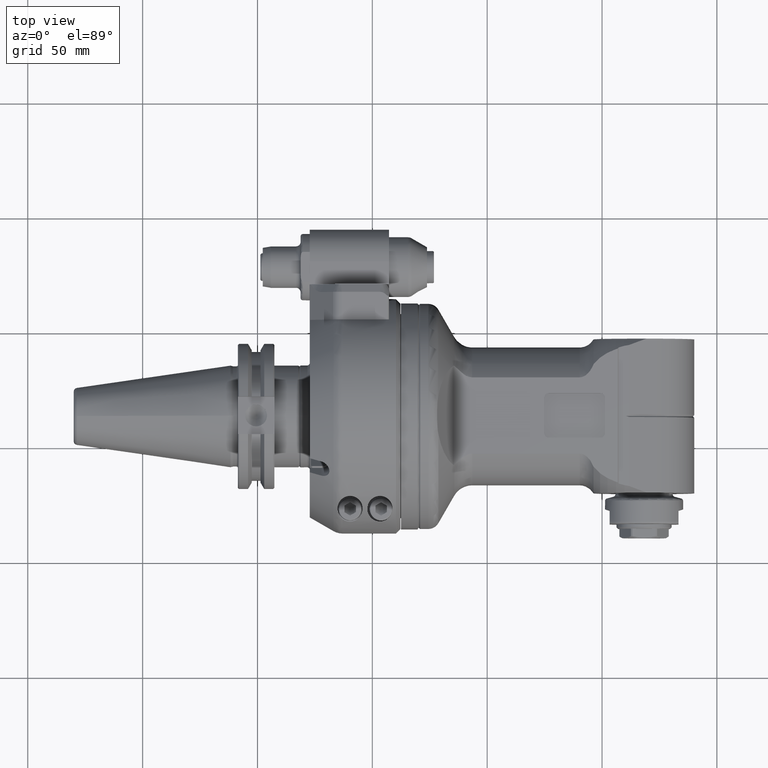
[diagram: clean part render]
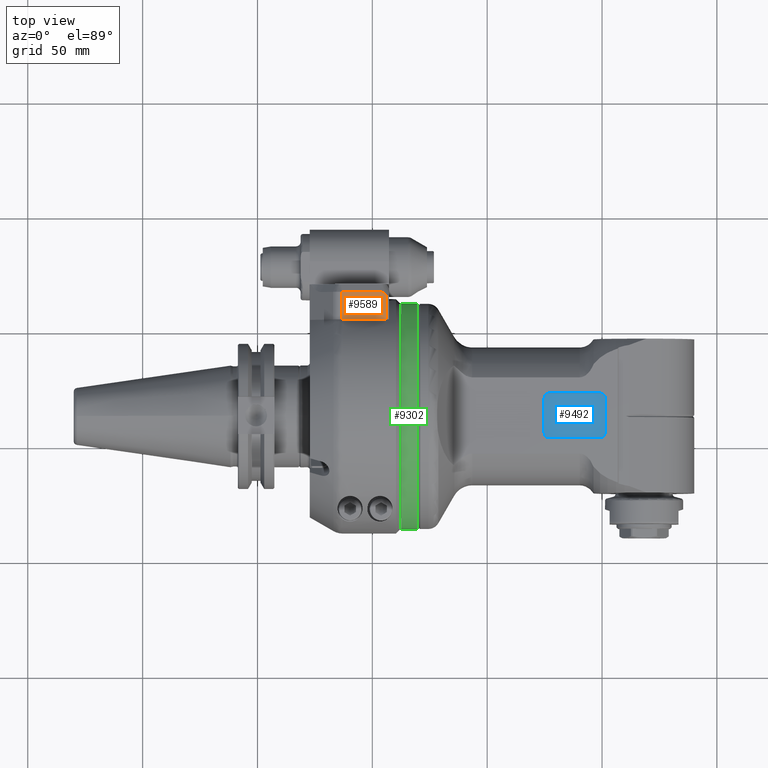
[diagram: same view with three faces highlighted in distinct colors, each labeled with its STEP entity id]
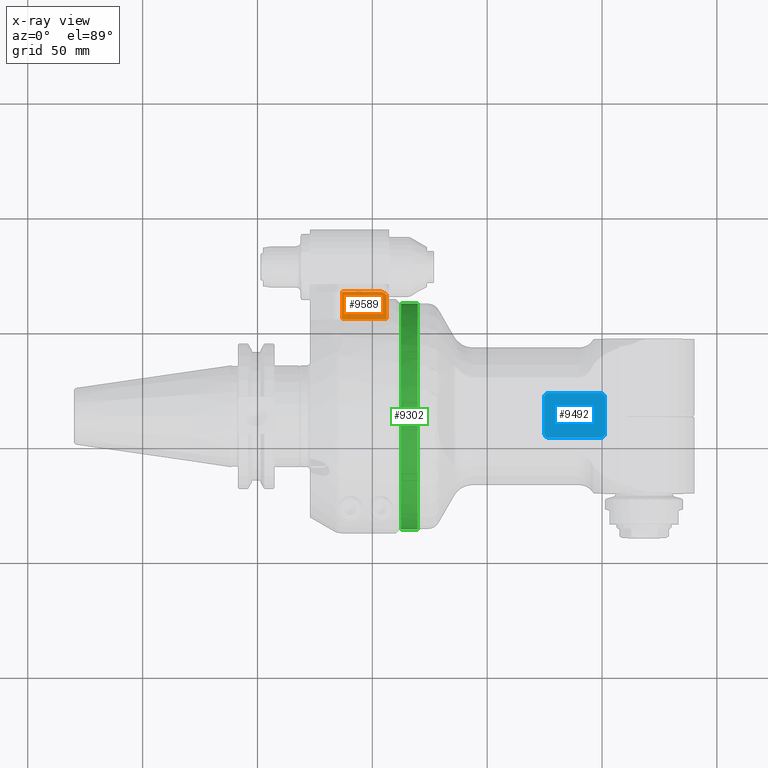
[diagram: x-ray of the same camera — body ghosted, the three highlighted faces saturated]
A machine part, top view with three faces highlighted in distinct colors.
The next image is the same camera in x-ray (body ghosted, the three faces saturated) — at least one of them is partly hidden behind the body in this view.
Their STEP definitions:

[orange] entity #9589 — the highlighted planar face has unit normal (-0, 0, -1).
#292=(
BOUNDED_CURVE()
B_SPLINE_CURVE(2,(#16316,#16317,#16318),.UNSPECIFIED.,.F.,.F.)
B_SPLINE_CURVE_WITH_KNOTS((3,3),(1.73736103353156,2.47170469126801),
 .UNSPECIFIED.)
CURVE()
GEOMETRIC_REPRESENTATION_ITEM()
RATIONAL_B_SPLINE_CURVE((1.75262800199672,1.75262800199672,1.61816620350837))
REPRESENTATION_ITEM('')
);
#969=LINE('',#16306,#1594);
#972=LINE('',#16313,#1597);
#973=LINE('',#16315,#1598);
#974=LINE('',#16319,#1599);
#1594=VECTOR('',#12752,16.58801200719);
#1597=VECTOR('',#12757,19.58801152481);
#1598=VECTOR('',#12758,10.59664825895);
#1599=VECTOR('',#12759,12.03589858901);
#2374=FACE_OUTER_BOUND('',#3040,.T.);
#3040=EDGE_LOOP('',(#7835,#7836,#7837,#7838,#7839));
#4388=VERTEX_POINT('',#16299);
#4390=VERTEX_POINT('',#16305);
#4392=VERTEX_POINT('',#16311);
#4393=VERTEX_POINT('',#16312);
#4394=VERTEX_POINT('',#16314);
#5600=EDGE_CURVE('',#4390,#4388,#969,.T.);
#5603=EDGE_CURVE('',#4392,#4393,#972,.T.);
#5604=EDGE_CURVE('',#4394,#4392,#973,.T.);
#5605=EDGE_CURVE('',#4390,#4394,#292,.T.);
#5606=EDGE_CURVE('',#4393,#4388,#974,.T.);
#7835=ORIENTED_EDGE('',*,*,#5603,.F.);
#7836=ORIENTED_EDGE('',*,*,#5604,.F.);
#7837=ORIENTED_EDGE('',*,*,#5605,.F.);
#7838=ORIENTED_EDGE('',*,*,#5600,.T.);
#7839=ORIENTED_EDGE('',*,*,#5606,.F.);
#9126=PLANE('',#10576);
#9589=ADVANCED_FACE('',(#2374),#9126,.F.);
#10576=AXIS2_PLACEMENT_3D('',#16310,#12755,#12756);
#12752=DIRECTION('',(-1.,-1.17976780454E-8,4.371282475133E-12));
#12755=DIRECTION('center_axis',(0.,0.,-1.));
#12756=DIRECTION('ref_axis',(0.,1.,0.));
#12757=DIRECTION('',(-1.,0.,0.));
#12758=DIRECTION('',(-8.150357303662E-13,-1.,3.486783873224E-14));
#12759=DIRECTION('',(1.751169642154E-10,1.,6.022780049711E-12));
#16299=CARTESIAN_POINT('',(-37.5880115227062,53.7858985008135,29.0000000101783));
#16305=CARTESIAN_POINT('',(-20.99999951552,53.78589878471,29.));
#16306=CARTESIAN_POINT('',(-20.99999951552,53.78589878471,29.));
#16310=CARTESIAN_POINT('Origin',(-43.,75.75,29.));
#16311=CARTESIAN_POINT('',(-18.,41.75,29.));
#16312=CARTESIAN_POINT('',(-37.58801152481,41.75,29.));
#16313=CARTESIAN_POINT('',(-18.,41.75,29.));
#16314=CARTESIAN_POINT('',(-17.99999999999,52.34664825895,29.));
#16315=CARTESIAN_POINT('',(-17.99999999999,52.34664825895,29.));
#16316=CARTESIAN_POINT('Ctrl Pts',(-20.99999951552,53.7858987847063,29.));
#16317=CARTESIAN_POINT('Ctrl Pts',(-19.6150798917026,53.7858987847063,29.));
#16318=CARTESIAN_POINT('Ctrl Pts',(-18.0000000000752,52.3466482590111,29.));
#16319=CARTESIAN_POINT('',(-37.58801152481,41.75,29.));

[blue] entity #9492 — the highlighted planar face has unit normal (0, -0, 1).
#861=LINE('',#15552,#1486);
#864=LINE('',#15561,#1489);
#865=LINE('',#15564,#1490);
#866=LINE('',#15568,#1491);
#1486=VECTOR('',#12300,22.5);
#1489=VECTOR('',#12309,15.5);
#1490=VECTOR('',#12312,15.5);
#1491=VECTOR('',#12315,22.5);
#2277=FACE_OUTER_BOUND('',#2928,.T.);
#2928=EDGE_LOOP('',(#7387,#7388,#7389,#7390,#7391,#7392,#7393,#7394));
#3564=CIRCLE('',#10405,2.);
#3565=CIRCLE('',#10407,2.);
#3566=CIRCLE('',#10408,2.);
#3567=CIRCLE('',#10409,2.);
#4245=VERTEX_POINT('',#15549);
#4246=VERTEX_POINT('',#15551);
#4247=VERTEX_POINT('',#15555);
#4248=VERTEX_POINT('',#15559);
#4249=VERTEX_POINT('',#15560);
#4250=VERTEX_POINT('',#15563);
#4251=VERTEX_POINT('',#15565);
#4252=VERTEX_POINT('',#15567);
#5378=EDGE_CURVE('',#4246,#4245,#861,.T.);
#5381=EDGE_CURVE('',#4245,#4247,#3564,.T.);
#5382=EDGE_CURVE('',#4248,#4249,#864,.T.);
#5383=EDGE_CURVE('',#4249,#4246,#3565,.T.);
#5384=EDGE_CURVE('',#4247,#4250,#865,.T.);
#5385=EDGE_CURVE('',#4250,#4251,#3566,.T.);
#5386=EDGE_CURVE('',#4251,#4252,#866,.T.);
#5387=EDGE_CURVE('',#4252,#4248,#3567,.T.);
#7387=ORIENTED_EDGE('',*,*,#5382,.T.);
#7388=ORIENTED_EDGE('',*,*,#5383,.T.);
#7389=ORIENTED_EDGE('',*,*,#5378,.T.);
#7390=ORIENTED_EDGE('',*,*,#5381,.T.);
#7391=ORIENTED_EDGE('',*,*,#5384,.T.);
#7392=ORIENTED_EDGE('',*,*,#5385,.T.);
#7393=ORIENTED_EDGE('',*,*,#5386,.T.);
#7394=ORIENTED_EDGE('',*,*,#5387,.T.);
#9074=PLANE('',#10406);
#9492=ADVANCED_FACE('',(#2277),#9074,.T.);
#10405=AXIS2_PLACEMENT_3D('',#15557,#12305,#12306);
#10406=AXIS2_PLACEMENT_3D('',#15558,#12307,#12308);
#10407=AXIS2_PLACEMENT_3D('',#15562,#12310,#12311);
#10408=AXIS2_PLACEMENT_3D('',#15566,#12313,#12314);
#10409=AXIS2_PLACEMENT_3D('',#15569,#12316,#12317);
#12300=DIRECTION('',(1.,0.,0.));
#12305=DIRECTION('center_axis',(0.,0.,1.));
#12306=DIRECTION('ref_axis',(0.,-1.,0.));
#12307=DIRECTION('center_axis',(0.,0.,1.));
#12308=DIRECTION('ref_axis',(1.,0.,0.));
#12309=DIRECTION('',(0.,-1.,0.));
#12310=DIRECTION('center_axis',(0.,0.,1.));
#12311=DIRECTION('ref_axis',(-1.,0.,0.));
#12312=DIRECTION('',(0.,1.,0.));
#12313=DIRECTION('center_axis',(0.,0.,1.));
#12314=DIRECTION('ref_axis',(1.,0.,0.));
#12315=DIRECTION('',(-1.,0.,0.));
#12316=DIRECTION('center_axis',(0.,0.,1.));
#12317=DIRECTION('ref_axis',(0.,1.,0.));
#15549=CARTESIAN_POINT('',(91.,-9.75,24.5));
#15551=CARTESIAN_POINT('',(68.5,-9.75,24.5));
#15552=CARTESIAN_POINT('',(68.5,-9.75,24.5));
#15555=CARTESIAN_POINT('',(93.,-7.75,24.5));
#15557=CARTESIAN_POINT('Origin',(91.,-7.75,24.5));
#15558=CARTESIAN_POINT('Origin',(66.15041510046,0.,24.5));
#15559=CARTESIAN_POINT('',(66.5,7.75,24.5));
#15560=CARTESIAN_POINT('',(66.5,-7.75,24.5));
#15561=CARTESIAN_POINT('',(66.5,7.75,24.5));
#15562=CARTESIAN_POINT('Origin',(68.5,-7.75,24.5));
#15563=CARTESIAN_POINT('',(93.,7.75,24.5));
#15564=CARTESIAN_POINT('',(93.,-7.75,24.5));
#15565=CARTESIAN_POINT('',(91.,9.75,24.5));
#15566=CARTESIAN_POINT('Origin',(91.,7.75,24.5));
#15567=CARTESIAN_POINT('',(68.5,9.75,24.5));
#15568=CARTESIAN_POINT('',(91.,9.75,24.5));
#15569=CARTESIAN_POINT('Origin',(68.5,7.75,24.5));

[green] entity #9302 — the highlighted cylindrical surface (bore or boss wall) has radius 49.2 mm, axis along (1, -0, -0).
#673=LINE('',#14505,#1298);
#1298=VECTOR('',#11388,49.2);
#1881=CYLINDRICAL_SURFACE('',#10041,49.2);
#2087=FACE_OUTER_BOUND('',#2695,.T.);
#2695=EDGE_LOOP('',(#6517,#6518,#6519,#6520));
#3395=CIRCLE('',#10040,49.2);
#3396=CIRCLE('',#10042,49.2);
#3974=VERTEX_POINT('',#14501);
#3975=VERTEX_POINT('',#14504);
#4963=EDGE_CURVE('',#3974,#3974,#3395,.T.);
#4964=EDGE_CURVE('',#3974,#3975,#673,.T.);
#4965=EDGE_CURVE('',#3975,#3975,#3396,.T.);
#6517=ORIENTED_EDGE('',*,*,#4963,.F.);
#6518=ORIENTED_EDGE('',*,*,#4964,.T.);
#6519=ORIENTED_EDGE('',*,*,#4965,.T.);
#6520=ORIENTED_EDGE('',*,*,#4964,.F.);
#9302=ADVANCED_FACE('',(#2087),#1881,.T.);
#10040=AXIS2_PLACEMENT_3D('',#14502,#11384,#11385);
#10041=AXIS2_PLACEMENT_3D('',#14503,#11386,#11387);
#10042=AXIS2_PLACEMENT_3D('',#14506,#11389,#11390);
#11384=DIRECTION('center_axis',(1.,0.,0.));
#11385=DIRECTION('ref_axis',(0.,1.,0.));
#11386=DIRECTION('center_axis',(1.,0.,0.));
#11387=DIRECTION('ref_axis',(0.,-1.,0.));
#11388=DIRECTION('',(-1.,0.,0.));
#11389=DIRECTION('center_axis',(1.,0.,0.));
#11390=DIRECTION('ref_axis',(0.,1.,0.));
#14501=CARTESIAN_POINT('',(11.5,49.2,-5.2936427203805E-14));
#14502=CARTESIAN_POINT('Origin',(11.5,0.,-5.896168945561E-14));
#14503=CARTESIAN_POINT('Origin',(3.835,0.,-5.896168945561E-14));
#14504=CARTESIAN_POINT('',(4.2,49.2,-5.2936427203805E-14));
#14505=CARTESIAN_POINT('',(3.835,49.2,-5.2936427203805E-14));
#14506=CARTESIAN_POINT('Origin',(4.2,0.,-5.896168945561E-14));